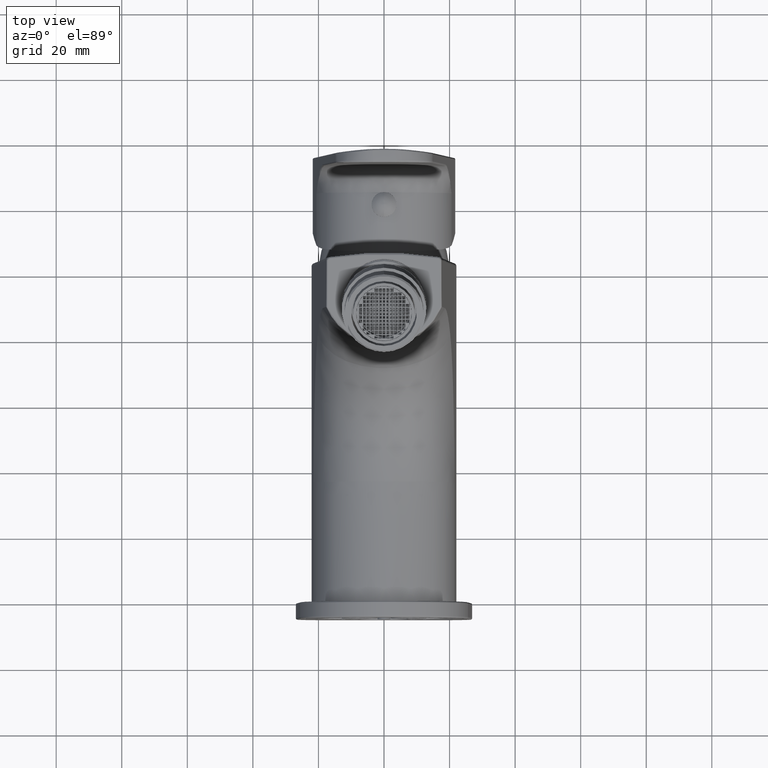
[diagram: clean part render]
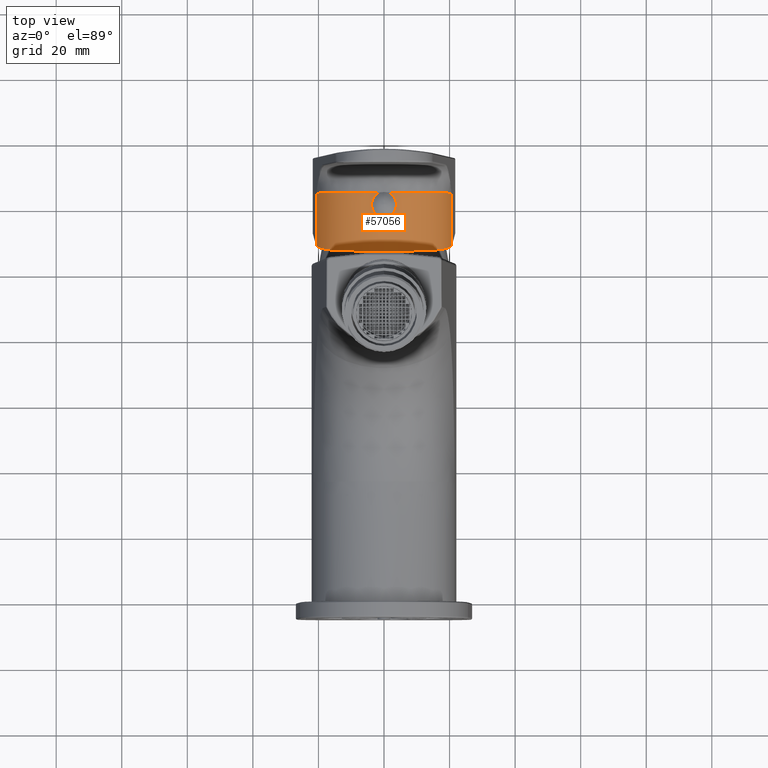
[diagram: same view with one face highlighted and labeled with its STEP entity id]
A machine part, top view. The second image highlights one B-rep face of the part: STEP entity #57056.
In plain terms, the highlighted cylindrical surface (partial cylindrical patch) has radius 20.6781 mm, axis along (0, 1, 0).
Its self-contained STEP definition (entity closure, byte-faithful):
#12367=DIRECTION('',(4.291882960837E-7,9.999999999682E-1,-7.958872531389E-6));
#12368=VECTOR('',#12367,1.584364366872E1);
#12369=CARTESIAN_POINT('',(2.061799093108E1,1.088608012479E2,3.397480697184E0));
#12370=LINE('',#12369,#12368);
#12572=DIRECTION('',(-1.991946930848E-13,1.E0,-2.355011149771E-14));
#12573=VECTOR('',#12572,1.357718544658E0);
#12574=CARTESIAN_POINT('',(-2.031162467218E0,1.177883993038E2,2.24E1));
#12575=LINE('',#12574,#12573);
#12576=CARTESIAN_POINT('',(-2.031162467218E0,1.177883993038E2,2.24E1));
#12577=CARTESIAN_POINT('',(-1.970323457465E0,1.177499219447E2,
2.240600511632E1));
#12578=CARTESIAN_POINT('',(-1.846773884254E0,1.176766109492E2,
2.241765642306E1));
#12579=CARTESIAN_POINT('',(-1.655411351789E0,1.175772742683E2,
2.243393604705E1));
#12580=CARTESIAN_POINT('',(-1.459432057748E0,1.174892397831E2,
2.244875299143E1));
#12581=CARTESIAN_POINT('',(-1.258736517720E0,1.174123900358E2,
2.246198571547E1));
#12582=CARTESIAN_POINT('',(-1.054557116207E0,1.173471679860E2,
2.247343434038E1));
#12583=CARTESIAN_POINT('',(-8.473375838010E-1,1.172936145337E2,
2.248298386003E1));
#12584=CARTESIAN_POINT('',(-6.374573017104E-1,1.172518192147E2,
2.249053015500E1));
#12585=CARTESIAN_POINT('',(-4.261414148560E-1,1.172219576677E2,
2.249597185110E1));
#12586=CARTESIAN_POINT('',(-2.131742289388E-1,1.172039830774E2,
2.249926746795E1));
#12587=CARTESIAN_POINT('',(-7.112392040464E-2,1.172E2,2.25E1));
#12588=CARTESIAN_POINT('',(-1.863861067914E-12,1.172E2,2.25E1));
#12590=CARTESIAN_POINT('',(-1.863861067914E-12,1.172E2,2.25E1));
#12591=CARTESIAN_POINT('',(7.112039158315E-2,1.172E2,2.25E1));
#12592=CARTESIAN_POINT('',(2.131654711900E-1,1.172039826590E2,
2.249926754486E1));
#12593=CARTESIAN_POINT('',(4.261317933581E-1,1.172219565722E2,
2.249597205166E1));
#12594=CARTESIAN_POINT('',(6.374493176515E-1,1.172518177868E2,
2.249053041350E1));
#12595=CARTESIAN_POINT('',(8.473309595789E-1,1.172936131455E2,
2.248298411094E1));
#12596=CARTESIAN_POINT('',(1.054543277321E0,1.173471639201E2,2.247343505887E1));
#12597=CARTESIAN_POINT('',(1.258735277731E0,1.174123894354E2,2.246198581735E1));
#12598=CARTESIAN_POINT('',(1.459428554858E0,1.174892384255E2,2.244875322487E1));
#12599=CARTESIAN_POINT('',(1.655409400186E0,1.175772731481E2,2.243393622796E1));
#12600=CARTESIAN_POINT('',(1.846780083246E0,1.176766143159E2,2.241765587623E1));
#12601=CARTESIAN_POINT('',(1.970326137865E0,1.177499236400E2,2.240600485175E1));
#12602=CARTESIAN_POINT('',(2.031162467218E0,1.177883993038E2,2.24E1));
#12604=DIRECTION('',(-2.361552847407E-13,1.E0,2.355011149769E-14));
#12605=VECTOR('',#12604,1.357718544659E0);
#12606=CARTESIAN_POINT('',(2.031162467218E0,1.177883993038E2,2.24E1));
#12607=LINE('',#12606,#12605);
#12608=CARTESIAN_POINT('',(2.561737691488E0,1.2E2,2.234070408680E1));
#12609=CARTESIAN_POINT('',(2.541295373060E0,1.199476321424E2,2.234325627478E1));
#12610=CARTESIAN_POINT('',(2.497312543814E0,1.198444175761E2,2.234868586184E1));
#12611=CARTESIAN_POINT('',(2.421959910781E0,1.196938447573E2,2.235772435784E1));
#12612=CARTESIAN_POINT('',(2.337671617981E0,1.195483716340E2,2.236750217030E1));
#12613=CARTESIAN_POINT('',(2.244383722575E0,1.194079075369E2,2.237791576878E1));
#12614=CARTESIAN_POINT('',(2.142361202546E0,1.192730682770E2,2.238881253989E1));
#12615=CARTESIAN_POINT('',(2.069133897214E0,1.191877203545E2,2.239625202884E1));
#12616=CARTESIAN_POINT('',(2.031162467218E0,1.191461178485E2,2.24E1));
#12618=CARTESIAN_POINT('',(2.561737691488E0,1.2E2,2.234070408680E1));
#12619=CARTESIAN_POINT('',(2.582487395537E0,1.200531552990E2,2.233811352225E1));
#12620=CARTESIAN_POINT('',(2.620574238252E0,1.201604702165E2,2.233329502018E1));
#12621=CARTESIAN_POINT('',(2.667623248013E0,1.203247176101E2,2.232722119765E1));
#12622=CARTESIAN_POINT('',(2.704348760532E0,1.204913794959E2,2.232240365365E1));
#12623=CARTESIAN_POINT('',(2.730663048739E0,1.206598990460E2,2.231891064147E1));
#12624=CARTESIAN_POINT('',(2.746481312755E0,1.208296424501E2,2.231679432195E1));
#12625=CARTESIAN_POINT('',(2.751759343614E0,1.210000000006E2,2.231608540992E1));
#12626=CARTESIAN_POINT('',(2.746481312776E0,1.211703575474E2,2.231679432194E1));
#12627=CARTESIAN_POINT('',(2.730663049670E0,1.213401009464E2,2.231891064134E1));
#12628=CARTESIAN_POINT('',(2.704348761178E0,1.215086205018E2,2.232240365356E1));
#12629=CARTESIAN_POINT('',(2.667623246662E0,1.216752823953E2,2.232722119783E1));
#12630=CARTESIAN_POINT('',(2.620574237725E0,1.218395297849E2,2.233329502024E1));
#12631=CARTESIAN_POINT('',(2.582487395280E0,1.219468447017E2,2.233811352228E1));
#12632=CARTESIAN_POINT('',(2.561737691488E0,1.22E2,2.234070408680E1));
#12634=CARTESIAN_POINT('',(2.031162467218E0,1.228538821515E2,2.24E1));
#12635=CARTESIAN_POINT('',(2.069086080647E0,1.228123320346E2,2.239625674858E1));
#12636=CARTESIAN_POINT('',(2.142252165003E0,1.227270624675E2,2.238882377252E1));
#12637=CARTESIAN_POINT('',(2.244240372912E0,1.225922965159E2,2.237793149169E1));
#12638=CARTESIAN_POINT('',(2.337629637114E0,1.224517024829E2,2.236750708684E1));
#12639=CARTESIAN_POINT('',(2.421960418214E0,1.223061551196E2,2.235772430430E1));
#12640=CARTESIAN_POINT('',(2.497310257443E0,1.221555871214E2,2.234868613778E1));
#12641=CARTESIAN_POINT('',(2.541295574769E0,1.220523673409E2,2.234325624960E1));
#12642=CARTESIAN_POINT('',(2.561737691488E0,1.22E2,2.234070408680E1));
#12644=DIRECTION('',(2.626491601756E-13,1.E0,-1.831675338709E-14));
#12645=VECTOR('',#12644,1.357718544659E0);
#12646=CARTESIAN_POINT('',(2.031162467218E0,1.228538821515E2,2.24E1));
#12647=LINE('',#12646,#12645);
#12648=CARTESIAN_POINT('',(2.031162467218E0,1.242116006962E2,2.24E1));
#12649=CARTESIAN_POINT('',(1.970306522810E0,1.242500887655E2,2.240600678785E1));
#12650=CARTESIAN_POINT('',(1.846723959922E0,1.243234176757E2,2.241766101266E1));
#12651=CARTESIAN_POINT('',(1.655326611247E0,1.244227677781E2,2.243394300645E1));
#12652=CARTESIAN_POINT('',(1.459295323209E0,1.245108176379E2,2.244876275813E1));
#12653=CARTESIAN_POINT('',(1.258566060414E0,1.245876716633E2,2.246199641114E1));
#12654=CARTESIAN_POINT('',(1.054303051745E0,1.246529041350E2,2.247344717136E1));
#12655=CARTESIAN_POINT('',(9.163439742927E-1,1.246885481217E2,
2.247980308051E1));
#12656=CARTESIAN_POINT('',(8.468479437969E-1,1.247044363348E2,
2.248265150103E1));
#12658=CARTESIAN_POINT('',(-1.541718769650E-13,1.247044430836E2,
1.821895158825E0));
#12659=DIRECTION('',(0.E0,1.E0,0.E0));
#12660=DIRECTION('',(4.095242498809E-2,0.E0,9.991610975651E-1));
#12661=AXIS2_PLACEMENT_3D('',#12658,#12659,#12660);
#12663=CARTESIAN_POINT('',(2.061799093108E1,1.088608012479E2,3.397480697184E0));
#12664=CARTESIAN_POINT('',(2.059678914466E1,1.088065391512E2,3.674925640324E0));
#12665=CARTESIAN_POINT('',(2.054320131232E1,1.087004002083E2,4.228750171445E0));
#12666=CARTESIAN_POINT('',(2.042943415508E1,1.085484483238E2,5.055163720463E0));
#12667=CARTESIAN_POINT('',(2.028260942743E1,1.084039557550E2,5.875359466189E0));
#12668=CARTESIAN_POINT('',(2.010334534169E1,1.082671299702E2,6.687035666508E0));
#12669=CARTESIAN_POINT('',(1.989170333134E1,1.081376859564E2,7.490616105796E0));
#12670=CARTESIAN_POINT('',(1.964786345138E1,1.080155441365E2,8.285316443975E0));
#12671=CARTESIAN_POINT('',(1.937240385413E1,1.079007674131E2,9.069212530616E0));
#12672=CARTESIAN_POINT('',(1.906625327311E1,1.077934008374E2,9.840083721008E0));
#12673=CARTESIAN_POINT('',(1.872916881215E1,1.076930526503E2,1.059869220463E1));
#12674=CARTESIAN_POINT('',(1.836158564208E1,1.075996105197E2,1.134378663233E1));
#12675=CARTESIAN_POINT('',(1.796429905957E1,1.075129896656E2,1.207361462882E1));
#12676=CARTESIAN_POINT('',(1.753854479001E1,1.074330985233E2,1.278607875498E1));
#12677=CARTESIAN_POINT('',(1.708376623708E1,1.073594981239E2,1.348206965308E1));
#12678=CARTESIAN_POINT('',(1.660080144114E1,1.072920264967E2,1.415998869422E1));
#12679=CARTESIAN_POINT('',(1.609069205461E1,1.072304900415E2,1.481822122541E1));
#12680=CARTESIAN_POINT('',(1.555495606666E1,1.071746870483E2,1.545488840522E1));
#12681=CARTESIAN_POINT('',(1.499280854715E1,1.071241748894E2,1.607081959902E1));
#12682=CARTESIAN_POINT('',(1.440557597604E1,1.070787368424E2,1.666426437755E1));
#12683=CARTESIAN_POINT('',(1.379457885769E1,1.070381085074E2,1.723376937683E1));
#12684=CARTESIAN_POINT('',(1.316153525820E1,1.070020155197E2,1.777779197607E1));
#12685=CARTESIAN_POINT('',(1.250555188698E1,1.069700433623E2,1.829699153279E1));
#12686=CARTESIAN_POINT('',(1.182844322199E1,1.069419383885E2,1.878968208444E1));
#12687=CARTESIAN_POINT('',(1.113181752077E1,1.069174097344E2,1.925462789268E1));
#12688=CARTESIAN_POINT('',(1.041744496480E1,1.068961604171E2,1.969071551248E1));
#12689=CARTESIAN_POINT('',(9.684454513803E0,1.068778331343E2,2.009838563833E1));
#12690=CARTESIAN_POINT('',(8.935060387078E0,1.068621747538E2,2.047621048481E1));
#12691=CARTESIAN_POINT('',(8.171136519847E0,1.068489165961E2,2.082323461474E1));
#12692=CARTESIAN_POINT('',(7.394304066813E0,1.068377933527E2,2.113880419978E1));
#12693=CARTESIAN_POINT('',(6.603852716324E0,1.068285324707E2,2.142313391966E1));
#12694=CARTESIAN_POINT('',(5.802249898282E0,1.068209267431E2,2.167518557535E1));
#12695=CARTESIAN_POINT('',(4.991600144425E0,1.068147746466E2,2.189433196842E1));
#12696=CARTESIAN_POINT('',(4.173164106692E0,1.068098893463E2,2.208032117075E1));
#12697=CARTESIAN_POINT('',(3.346550737570E0,1.068061054220E2,2.223317444815E1));
#12698=CARTESIAN_POINT('',(2.514314697637E0,1.068033010300E2,2.235230158867E1));
#12699=CARTESIAN_POINT('',(1.678764724657E0,1.068013742972E2,2.243743986639E1));
#12700=CARTESIAN_POINT('',(8.406255678969E-1,1.068002476090E2,
2.248859919979E1));
#12701=CARTESIAN_POINT('',(2.480604610611E-11,1.067998761955E2,
2.250570040010E1));
#12702=CARTESIAN_POINT('',(-8.406255678479E-1,1.068002476090E2,
2.248859919980E1));
#12703=CARTESIAN_POINT('',(-1.678764724611E0,1.068013742972E2,
2.243743986639E1));
#12704=CARTESIAN_POINT('',(-2.514314697591E0,1.068033010300E2,
2.235230158868E1));
#12705=CARTESIAN_POINT('',(-3.346550737540E0,1.068061054220E2,
2.223317444816E1));
#12706=CARTESIAN_POINT('',(-4.173164106686E0,1.068098893463E2,
2.208032117075E1));
#12707=CARTESIAN_POINT('',(-4.991600144462E0,1.068147746466E2,
2.189433196841E1));
#12708=CARTESIAN_POINT('',(-5.802249898266E0,1.068209267431E2,
2.167518557536E1));
#12709=CARTESIAN_POINT('',(-6.603852716307E0,1.068285324707E2,
2.142313391967E1));
#12710=CARTESIAN_POINT('',(-7.394304066809E0,1.068377933527E2,
2.113880419978E1));
#12711=CARTESIAN_POINT('',(-8.171136519870E0,1.068489165961E2,
2.082323461473E1));
#12712=CARTESIAN_POINT('',(-8.935060387054E0,1.068621747538E2,
2.047621048482E1));
#12713=CARTESIAN_POINT('',(-9.684454513761E0,1.068778331343E2,
2.009838563835E1));
#12714=CARTESIAN_POINT('',(-1.041744496473E1,1.068961604171E2,
1.969071551252E1));
#12715=CARTESIAN_POINT('',(-1.113181752070E1,1.069174097344E2,
1.925462789272E1));
#12716=CARTESIAN_POINT('',(-1.182844322192E1,1.069419383885E2,
1.878968208449E1));
#12717=CARTESIAN_POINT('',(-1.250555188689E1,1.069700433623E2,
1.829699153286E1));
#12718=CARTESIAN_POINT('',(-1.316153525803E1,1.070020155197E2,
1.777779197620E1));
#12719=CARTESIAN_POINT('',(-1.379457885753E1,1.070381085074E2,
1.723376937698E1));
#12720=CARTESIAN_POINT('',(-1.440557597594E1,1.070787368424E2,
1.666426437765E1));
#12721=CARTESIAN_POINT('',(-1.499280854703E1,1.071241748894E2,
1.607081959914E1));
#12722=CARTESIAN_POINT('',(-1.555495606645E1,1.071746870483E2,
1.545488840545E1));
#12723=CARTESIAN_POINT('',(-1.609069205444E1,1.072304900415E2,
1.481822122563E1));
#12724=CARTESIAN_POINT('',(-1.660080144103E1,1.072920264967E2,
1.415998869436E1));
#12725=CARTESIAN_POINT('',(-1.708376623699E1,1.073594981239E2,
1.348206965321E1));
#12726=CARTESIAN_POINT('',(-1.753854478987E1,1.074330985233E2,
1.278607875519E1));
#12727=CARTESIAN_POINT('',(-1.796429905948E1,1.075129896656E2,
1.207361462899E1));
#12728=CARTESIAN_POINT('',(-1.836158564204E1,1.075996105197E2,
1.134378663241E1));
#12729=CARTESIAN_POINT('',(-1.872916881214E1,1.076930526503E2,
1.059869220467E1));
#12730=CARTESIAN_POINT('',(-1.906625327310E1,1.077934008374E2,
9.840083721038E0));
#12731=CARTESIAN_POINT('',(-1.937240385413E1,1.079007674131E2,
9.069212530630E0));
#12732=CARTESIAN_POINT('',(-1.964786345138E1,1.080155441365E2,
8.285316443958E0));
#12733=CARTESIAN_POINT('',(-1.989170333135E1,1.081376859564E2,
7.490616105755E0));
#12734=CARTESIAN_POINT('',(-2.010334534171E1,1.082671299702E2,
6.687035666410E0));
#12735=CARTESIAN_POINT('',(-2.028260942744E1,1.084039557550E2,
5.875359466134E0));
#12736=CARTESIAN_POINT('',(-2.042943415508E1,1.085484483238E2,
5.055163720429E0));
#12737=CARTESIAN_POINT('',(-2.054320131233E1,1.087004002083E2,
4.228750171430E0));
#12738=CARTESIAN_POINT('',(-2.059678914466E1,1.088065391512E2,
3.674925640317E0));
#12739=CARTESIAN_POINT('',(-2.061799093108E1,1.088608012479E2,
3.397480697181E0));
#12741=DIRECTION('',(-5.338343544943E-7,9.999999999554E-1,-9.425048585489E-6));
#12742=VECTOR('',#12741,1.584364363991E1);
#12743=CARTESIAN_POINT('',(-2.061799093108E1,1.088608012479E2,
3.397480697181E0));
#12744=LINE('',#12743,#12742);
#12745=CARTESIAN_POINT('',(-1.541718769650E-13,1.247044430836E2,
1.821895158825E0));
#12746=DIRECTION('',(0.E0,1.E0,0.E0));
#12747=DIRECTION('',(-9.970947238046E-1,0.E0,7.617159418680E-2));
#12748=AXIS2_PLACEMENT_3D('',#12745,#12746,#12747);
#12750=CARTESIAN_POINT('',(-8.468183149505E-1,1.247044431081E2,
2.248265251276E1));
#12751=CARTESIAN_POINT('',(-9.163138644669E-1,1.246885567516E2,
2.247980411262E1));
#12752=CARTESIAN_POINT('',(-1.054314738257E0,1.246529008754E2,
2.247344682300E1));
#12753=CARTESIAN_POINT('',(-1.258568984517E0,1.245876705132E2,
2.246199615051E1));
#12754=CARTESIAN_POINT('',(-1.459300274665E0,1.245108155572E2,
2.244876242207E1));
#12755=CARTESIAN_POINT('',(-1.655327232671E0,1.244227675450E2,
2.243394296014E1));
#12756=CARTESIAN_POINT('',(-1.846733338985E0,1.243234125556E2,
2.241766018408E1));
#12757=CARTESIAN_POINT('',(-1.970310277468E0,1.242500863909E2,
2.240600641725E1));
#12758=CARTESIAN_POINT('',(-2.031162467218E0,1.242116006962E2,2.24E1));
#12760=DIRECTION('',(1.884008919817E-13,1.E0,2.093343244241E-14));
#12761=VECTOR('',#12760,1.357718544658E0);
#12762=CARTESIAN_POINT('',(-2.031162467218E0,1.228538821515E2,2.24E1));
#12763=LINE('',#12762,#12761);
#12764=CARTESIAN_POINT('',(-2.561737691492E0,1.22E2,2.234070408680E1));
#12765=CARTESIAN_POINT('',(-2.541293100753E0,1.220523736787E2,
2.234325655848E1));
#12766=CARTESIAN_POINT('',(-2.497305195217E0,1.221555990881E2,
2.234868676523E1));
#12767=CARTESIAN_POINT('',(-2.421944680558E0,1.223061840478E2,
2.235772616376E1));
#12768=CARTESIAN_POINT('',(-2.337645784491E0,1.224516709774E2,
2.236750513464E1));
#12769=CARTESIAN_POINT('',(-2.244341995109E0,1.225921513206E2,
2.237792033154E1));
#12770=CARTESIAN_POINT('',(-2.142330929713E0,1.227269680427E2,
2.238881565816E1));
#12771=CARTESIAN_POINT('',(-2.069121197548E0,1.228122935596E2,
2.239625328236E1));
#12772=CARTESIAN_POINT('',(-2.031162467218E0,1.228538821515E2,2.24E1));
#12774=CARTESIAN_POINT('',(-2.561737691492E0,1.22E2,2.234070408680E1));
#12775=CARTESIAN_POINT('',(-2.582487395541E0,1.219468447010E2,
2.233811352225E1));
#12776=CARTESIAN_POINT('',(-2.620574238255E0,1.218395297835E2,
2.233329502018E1));
#12777=CARTESIAN_POINT('',(-2.667623248016E0,1.216752823899E2,
2.232722119765E1));
#12778=CARTESIAN_POINT('',(-2.704348760535E0,1.215086205041E2,
2.232240365365E1));
#12779=CARTESIAN_POINT('',(-2.730663048743E0,1.213401009540E2,
2.231891064146E1));
#12780=CARTESIAN_POINT('',(-2.746481312759E0,1.211703575499E2,
2.231679432195E1));
#12781=CARTESIAN_POINT('',(-2.751759343618E0,1.209999999994E2,
2.231608540992E1));
#12782=CARTESIAN_POINT('',(-2.746481312780E0,1.208296424526E2,
2.231679432194E1));
#12783=CARTESIAN_POINT('',(-2.730663049674E0,1.206598990536E2,
2.231891064134E1));
#12784=CARTESIAN_POINT('',(-2.704348761182E0,1.204913794982E2,
2.232240365356E1));
#12785=CARTESIAN_POINT('',(-2.667623246666E0,1.203247176047E2,
2.232722119783E1));
#12786=CARTESIAN_POINT('',(-2.620574237728E0,1.201604702151E2,
2.233329502024E1));
#12787=CARTESIAN_POINT('',(-2.582487395283E0,1.200531552983E2,
2.233811352228E1));
#12788=CARTESIAN_POINT('',(-2.561737691492E0,1.2E2,2.234070408680E1));
#12790=CARTESIAN_POINT('',(-2.031162467218E0,1.191461178485E2,2.24E1));
#12791=CARTESIAN_POINT('',(-2.069133670437E0,1.191877201061E2,
2.239625205123E1));
#12792=CARTESIAN_POINT('',(-2.142360699350E0,1.192730676724E2,
2.238881259178E1));
#12793=CARTESIAN_POINT('',(-2.244383116070E0,1.194079066663E2,
2.237791583549E1));
#12794=CARTESIAN_POINT('',(-2.337671564282E0,1.195483715161E2,
2.236750217707E1));
#12795=CARTESIAN_POINT('',(-2.421959974417E0,1.196938448793E2,
2.235772435023E1));
#12796=CARTESIAN_POINT('',(-2.497312535544E0,1.198444175627E2,
2.234868586281E1));
#12797=CARTESIAN_POINT('',(-2.541295372201E0,1.199476321402E2,
2.234325627489E1));
#12798=CARTESIAN_POINT('',(-2.561737691492E0,1.2E2,2.234070408680E1));
#13558=CARTESIAN_POINT('',(-2.061799093108E1,1.088608012479E2,
3.397480697181E0));
#39759=VERTEX_POINT('',#13558);
#39761=VERTEX_POINT('',#12663);
#39767=CARTESIAN_POINT('',(-2.061799938896E1,1.247044448871E2,
3.397331370070E0));
#39768=VERTEX_POINT('',#39767);
#39769=CARTESIAN_POINT('',(2.061799773098E1,1.247044449161E2,3.397354599644E0));
#39770=VERTEX_POINT('',#39769);
#40050=CARTESIAN_POINT('',(-2.031162467218E0,1.177883993038E2,2.24E1));
#40051=CARTESIAN_POINT('',(-2.031162467218E0,1.191461178485E2,2.24E1));
#40052=VERTEX_POINT('',#40050);
#40053=VERTEX_POINT('',#40051);
#40054=CARTESIAN_POINT('',(-2.031162467218E0,1.228538821515E2,2.24E1));
#40055=CARTESIAN_POINT('',(-2.031162467218E0,1.242116006962E2,2.24E1));
#40056=VERTEX_POINT('',#40054);
#40057=VERTEX_POINT('',#40055);
#40058=CARTESIAN_POINT('',(2.031162467218E0,1.177883993038E2,2.24E1));
#40059=CARTESIAN_POINT('',(2.031162467218E0,1.191461178485E2,2.24E1));
#40060=VERTEX_POINT('',#40058);
#40061=VERTEX_POINT('',#40059);
#40062=CARTESIAN_POINT('',(2.031162467218E0,1.228538821515E2,2.24E1));
#40063=CARTESIAN_POINT('',(2.031162467218E0,1.242116006962E2,2.24E1));
#40064=VERTEX_POINT('',#40062);
#40065=VERTEX_POINT('',#40063);
#40066=VERTEX_POINT('',#12618);
#40067=VERTEX_POINT('',#12632);
#40068=VERTEX_POINT('',#12774);
#40069=VERTEX_POINT('',#12788);
#40070=VERTEX_POINT('',#12590);
#40071=VERTEX_POINT('',#12656);
#40072=VERTEX_POINT('',#12750);
#57016=CARTESIAN_POINT('',(-1.541718769650E-13,1.068E2,1.821895158825E0));
#57017=DIRECTION('',(0.E0,1.E0,0.E0));
#57018=DIRECTION('',(1.E0,0.E0,8.526512829121E-14));
#57019=AXIS2_PLACEMENT_3D('',#57016,#57017,#57018);
#57020=CYLINDRICAL_SURFACE('',#57019,2.067810484118E1);
#57022=ORIENTED_EDGE('',*,*,#57021,.F.);
#57023=ORIENTED_EDGE('',*,*,#56993,.T.);
#57025=ORIENTED_EDGE('',*,*,#57024,.T.);
#57027=ORIENTED_EDGE('',*,*,#57026,.T.);
#57029=ORIENTED_EDGE('',*,*,#57028,.F.);
#57031=ORIENTED_EDGE('',*,*,#57030,.T.);
#57033=ORIENTED_EDGE('',*,*,#57032,.F.);
#57035=ORIENTED_EDGE('',*,*,#57034,.T.);
#57037=ORIENTED_EDGE('',*,*,#57036,.T.);
#57039=ORIENTED_EDGE('',*,*,#57038,.T.);
#57040=ORIENTED_EDGE('',*,*,#56512,.F.);
#57041=ORIENTED_EDGE('',*,*,#56429,.T.);
#57043=ORIENTED_EDGE('',*,*,#57042,.T.);
#57044=ORIENTED_EDGE('',*,*,#56972,.T.);
#57045=ORIENTED_EDGE('',*,*,#56997,.T.);
#57047=ORIENTED_EDGE('',*,*,#57046,.F.);
#57049=ORIENTED_EDGE('',*,*,#57048,.F.);
#57051=ORIENTED_EDGE('',*,*,#57050,.T.);
#57053=ORIENTED_EDGE('',*,*,#57052,.F.);
#57054=EDGE_LOOP('',(#57022,#57023,#57025,#57027,#57029,#57031,#57033,#57035,
#57037,#57039,#57040,#57041,#57043,#57044,#57045,#57047,#57049,#57051,#57053));
#57055=FACE_OUTER_BOUND('',#57054,.F.);
#57056=ADVANCED_FACE('',(#57055),#57020,.T.);
#12589=B_SPLINE_CURVE_WITH_KNOTS('',3,(#12576,#12577,#12578,#12579,#12580,
#12581,#12582,#12583,#12584,#12585,#12586,#12587,#12588),.UNSPECIFIED.,.F.,.F.,(
4,1,1,1,1,1,1,1,1,1,4),(0.E0,1.E-1,2.E-1,3.E-1,4.E-1,5.E-1,6.E-1,7.E-1,8.E-1,
9.E-1,1.E0),.UNSPECIFIED.);
#12603=B_SPLINE_CURVE_WITH_KNOTS('',3,(#12590,#12591,#12592,#12593,#12594,
#12595,#12596,#12597,#12598,#12599,#12600,#12601,#12602),.UNSPECIFIED.,.F.,.F.,(
4,1,1,1,1,1,1,1,1,1,4),(0.E0,1.E-1,2.E-1,3.E-1,4.E-1,5.E-1,6.E-1,7.E-1,8.E-1,
9.E-1,1.E0),.UNSPECIFIED.);
#12617=B_SPLINE_CURVE_WITH_KNOTS('',3,(#12608,#12609,#12610,#12611,#12612,
#12613,#12614,#12615,#12616),.UNSPECIFIED.,.F.,.F.,(4,1,1,1,1,1,4),(0.E0,
1.666666666667E-1,3.333333333333E-1,5.E-1,6.666666666667E-1,8.333333333333E-1,
1.E0),.UNSPECIFIED.);
#12633=B_SPLINE_CURVE_WITH_KNOTS('',3,(#12618,#12619,#12620,#12621,#12622,
#12623,#12624,#12625,#12626,#12627,#12628,#12629,#12630,#12631,#12632),
.UNSPECIFIED.,.F.,.F.,(4,1,1,1,1,1,1,1,1,1,1,1,4),(0.E0,8.333333333333E-2,
1.666666666667E-1,2.5E-1,3.333333333333E-1,4.166666666667E-1,5.E-1,
5.833333333333E-1,6.666666666667E-1,7.5E-1,8.333333333333E-1,9.166666666667E-1,
1.E0),.UNSPECIFIED.);
#12643=B_SPLINE_CURVE_WITH_KNOTS('',3,(#12634,#12635,#12636,#12637,#12638,
#12639,#12640,#12641,#12642),.UNSPECIFIED.,.F.,.F.,(4,1,1,1,1,1,4),(0.E0,
1.666666666667E-1,3.333333333333E-1,5.E-1,6.666666666667E-1,8.333333333333E-1,
1.E0),.UNSPECIFIED.);
#12657=B_SPLINE_CURVE_WITH_KNOTS('',3,(#12648,#12649,#12650,#12651,#12652,
#12653,#12654,#12655,#12656),.UNSPECIFIED.,.F.,.F.,(4,1,1,1,1,1,4),(0.E0,
1.666666666667E-1,3.333333333333E-1,5.E-1,6.666666666667E-1,8.333333333333E-1,
1.E0),.UNSPECIFIED.);
#12662=CIRCLE('',#12661,2.067810484118E1);
#12740=B_SPLINE_CURVE_WITH_KNOTS('',3,(#12663,#12664,#12665,#12666,#12667,
#12668,#12669,#12670,#12671,#12672,#12673,#12674,#12675,#12676,#12677,#12678,
#12679,#12680,#12681,#12682,#12683,#12684,#12685,#12686,#12687,#12688,#12689,
#12690,#12691,#12692,#12693,#12694,#12695,#12696,#12697,#12698,#12699,#12700,
#12701,#12702,#12703,#12704,#12705,#12706,#12707,#12708,#12709,#12710,#12711,
#12712,#12713,#12714,#12715,#12716,#12717,#12718,#12719,#12720,#12721,#12722,
#12723,#12724,#12725,#12726,#12727,#12728,#12729,#12730,#12731,#12732,#12733,
#12734,#12735,#12736,#12737,#12738,#12739),.UNSPECIFIED.,.F.,.F.,(4,1,1,1,1,1,1,
1,1,1,1,1,1,1,1,1,1,1,1,1,1,1,1,1,1,1,1,1,1,1,1,1,1,1,1,1,1,1,1,1,1,1,1,1,1,1,1,
1,1,1,1,1,1,1,1,1,1,1,1,1,1,1,1,1,1,1,1,1,1,1,1,1,1,1,4),(0.E0,
1.351351351351E-2,2.702702702703E-2,4.054054054054E-2,5.405405405405E-2,
6.756756756757E-2,8.108108108108E-2,9.459459459459E-2,1.081081081081E-1,
1.216216216216E-1,1.351351351351E-1,1.486486486486E-1,1.621621621622E-1,
1.756756756757E-1,1.891891891892E-1,2.027027027027E-1,2.162162162162E-1,
2.297297297297E-1,2.432432432432E-1,2.567567567568E-1,2.702702702703E-1,
2.837837837838E-1,2.972972972973E-1,3.108108108108E-1,3.243243243243E-1,
3.378378378378E-1,3.513513513514E-1,3.648648648649E-1,3.783783783784E-1,
3.918918918919E-1,4.054054054054E-1,4.189189189189E-1,4.324324324324E-1,
4.459459459459E-1,4.594594594595E-1,4.729729729730E-1,4.864864864865E-1,5.E-1,
5.135135135135E-1,5.270270270270E-1,5.405405405405E-1,5.540540540541E-1,
5.675675675676E-1,5.810810810811E-1,5.945945945946E-1,6.081081081081E-1,
6.216216216216E-1,6.351351351351E-1,6.486486486486E-1,6.621621621622E-1,
6.756756756757E-1,6.891891891892E-1,7.027027027027E-1,7.162162162162E-1,
7.297297297297E-1,7.432432432432E-1,7.567567567568E-1,7.702702702703E-1,
7.837837837838E-1,7.972972972973E-1,8.108108108108E-1,8.243243243243E-1,
8.378378378378E-1,8.513513513514E-1,8.648648648649E-1,8.783783783784E-1,
8.918918918919E-1,9.054054054054E-1,9.189189189189E-1,9.324324324324E-1,
9.459459459459E-1,9.594594594595E-1,9.729729729730E-1,9.864864864865E-1,1.E0),
.UNSPECIFIED.);
#12749=CIRCLE('',#12748,2.067810484118E1);
#12759=B_SPLINE_CURVE_WITH_KNOTS('',3,(#12750,#12751,#12752,#12753,#12754,
#12755,#12756,#12757,#12758),.UNSPECIFIED.,.F.,.F.,(4,1,1,1,1,1,4),(0.E0,
1.666666666667E-1,3.333333333333E-1,5.E-1,6.666666666667E-1,8.333333333333E-1,
1.E0),.UNSPECIFIED.);
#12773=B_SPLINE_CURVE_WITH_KNOTS('',3,(#12764,#12765,#12766,#12767,#12768,
#12769,#12770,#12771,#12772),.UNSPECIFIED.,.F.,.F.,(4,1,1,1,1,1,4),(0.E0,
1.666666666667E-1,3.333333333333E-1,5.E-1,6.666666666667E-1,8.333333333333E-1,
1.E0),.UNSPECIFIED.);
#12789=B_SPLINE_CURVE_WITH_KNOTS('',3,(#12774,#12775,#12776,#12777,#12778,
#12779,#12780,#12781,#12782,#12783,#12784,#12785,#12786,#12787,#12788),
.UNSPECIFIED.,.F.,.F.,(4,1,1,1,1,1,1,1,1,1,1,1,4),(0.E0,8.333333333333E-2,
1.666666666667E-1,2.5E-1,3.333333333333E-1,4.166666666667E-1,5.E-1,
5.833333333333E-1,6.666666666667E-1,7.5E-1,8.333333333333E-1,9.166666666667E-1,
1.E0),.UNSPECIFIED.);
#12799=B_SPLINE_CURVE_WITH_KNOTS('',3,(#12790,#12791,#12792,#12793,#12794,
#12795,#12796,#12797,#12798),.UNSPECIFIED.,.F.,.F.,(4,1,1,1,1,1,4),(0.E0,
1.666666666667E-1,3.333333333333E-1,5.E-1,6.666666666667E-1,8.333333333333E-1,
1.E0),.UNSPECIFIED.);
#56429=EDGE_CURVE('',#39761,#39759,#12740,.T.);
#56512=EDGE_CURVE('',#39761,#39770,#12370,.T.);
#56972=EDGE_CURVE('',#39768,#40072,#12749,.T.);
#56993=EDGE_CURVE('',#40052,#40070,#12589,.T.);
#56997=EDGE_CURVE('',#40072,#40057,#12759,.T.);
#57021=EDGE_CURVE('',#40052,#40053,#12575,.T.);
#57024=EDGE_CURVE('',#40070,#40060,#12603,.T.);
#57026=EDGE_CURVE('',#40060,#40061,#12607,.T.);
#57028=EDGE_CURVE('',#40066,#40061,#12617,.T.);
#57030=EDGE_CURVE('',#40066,#40067,#12633,.T.);
#57032=EDGE_CURVE('',#40064,#40067,#12643,.T.);
#57034=EDGE_CURVE('',#40064,#40065,#12647,.T.);
#57036=EDGE_CURVE('',#40065,#40071,#12657,.T.);
#57038=EDGE_CURVE('',#40071,#39770,#12662,.T.);
#57042=EDGE_CURVE('',#39759,#39768,#12744,.T.);
#57046=EDGE_CURVE('',#40056,#40057,#12763,.T.);
#57048=EDGE_CURVE('',#40068,#40056,#12773,.T.);
#57050=EDGE_CURVE('',#40068,#40069,#12789,.T.);
#57052=EDGE_CURVE('',#40053,#40069,#12799,.T.);